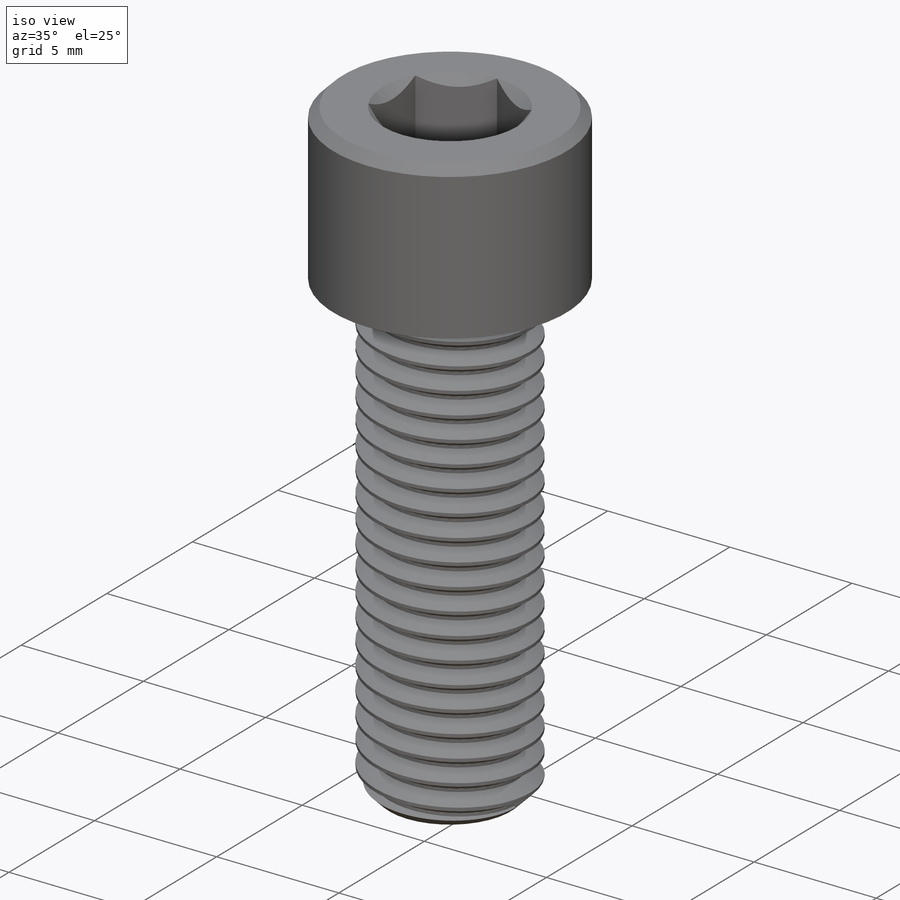
[diagram: iso view]
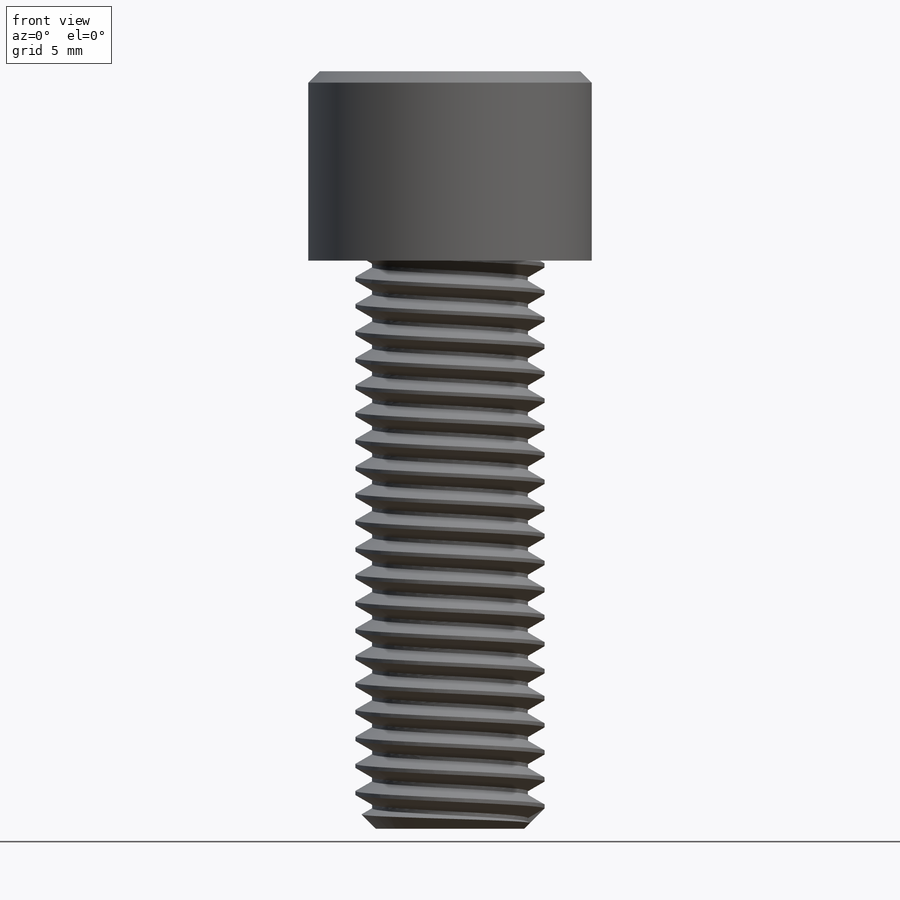
[diagram: front view]
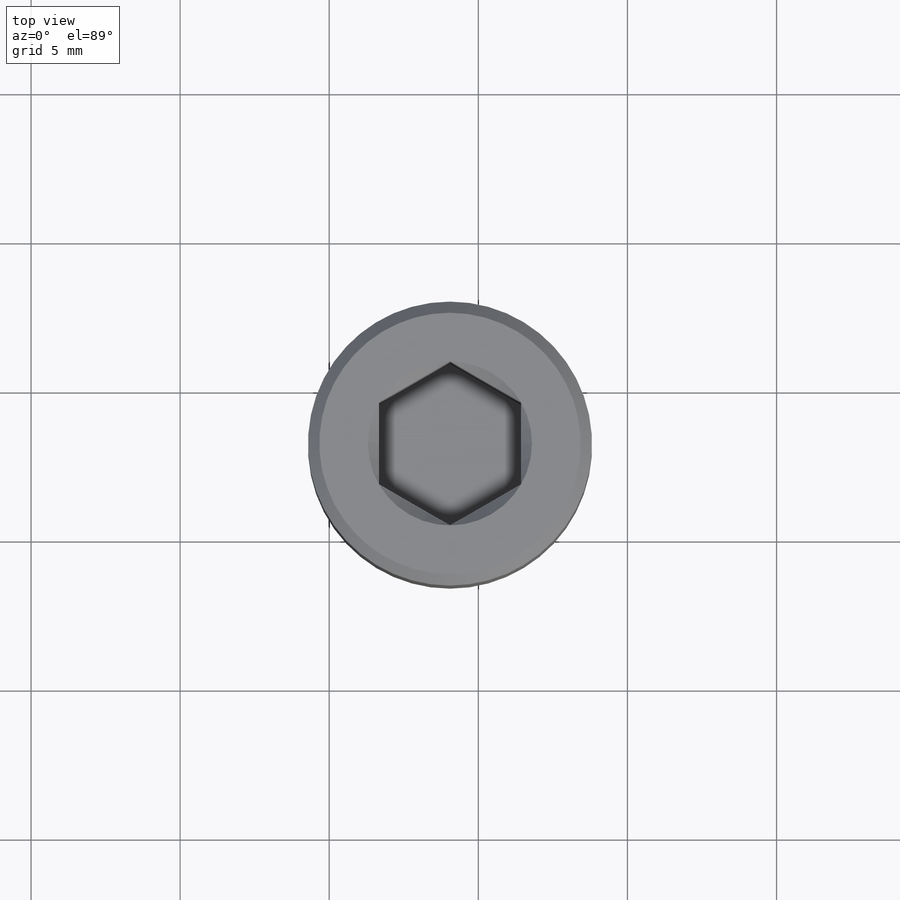
[diagram: top view]
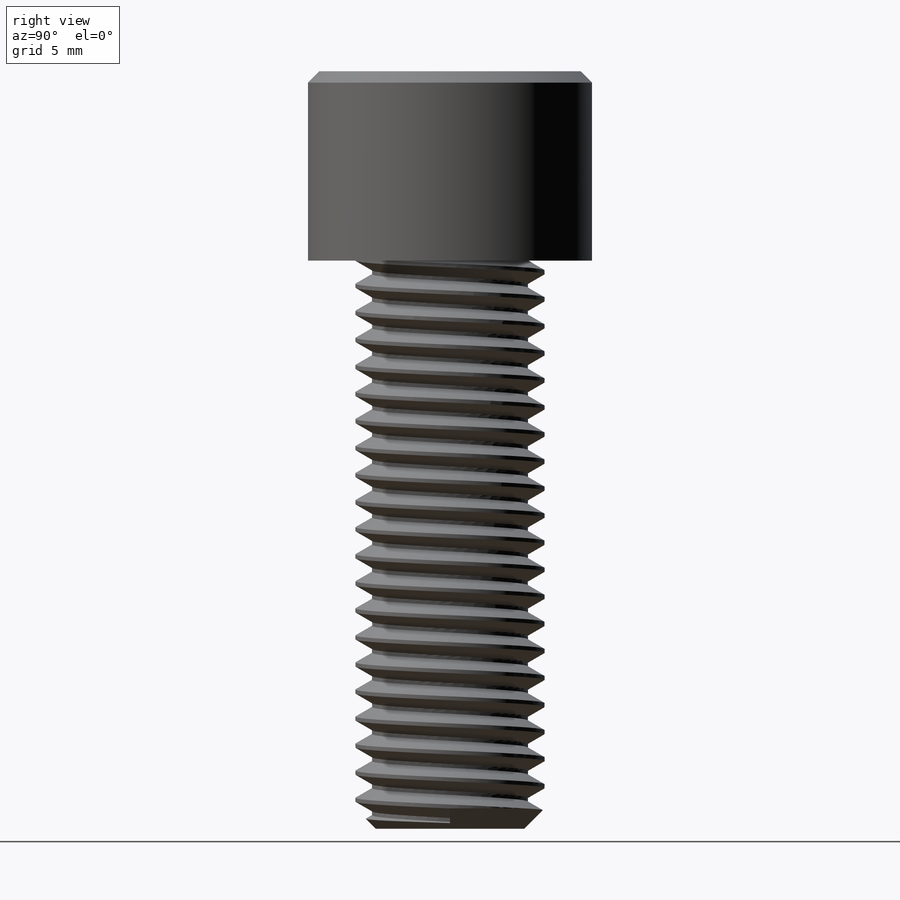
[diagram: right view]
SOLIDWORKS PART (.sldprt)
format: sldprt  version: not decoded by parser v0  size: 3,137,536 bytes
history: native  units: mm
features: sketch x16, cut_extrude x6, revolve x2, helix x2, sweep x2, pattern_circular x2, extrude x2, chamfer x2, mirror x2, boolean_combine x2, material x1, plane x1, cut_revolve x1, fillet x1 (+14 scaffold rows collapsed)
feature tree (56):
  scaffold x14  (default folders/planes/origin — collapsed)
  material  "Material <not specified>"
  sketch  "Sketch11"  dims[D1=69.85mm D2=~10.31875mm Tapped Dia=6.35mm D3=12.7mm]
  revolve  "Revolve2"  Angle=360deg
  sketch  "Sketch15"  dims[D1=0.0mm]
  helix  "Helix/Spiral1"  Pitch=16.66875mm
  sketch  "Sketch16"  dims[c1.D1=1.27mm c1.D2=~0.15875mm c1.D3=~1.374815mm c2.D3=60.0deg]
  sweep  "Cut-Sweep1"
  pattern_circular  "CirPattern1"  Count=2 Angle=120deg
  pattern_circular  "CirPattern2"  Count=2 Angle=120deg
  sketch  "Sketch1"  dims[Bore Dia=25.4mm OD=50.8mm Separation=1.016mm]
  extrude  "Extrude1"  Depth=25.4mm Width=25.4mm
  sketch  "Sketch14"  dims[D1=~10.31875mm]
  plane  "Plane1"
  sketch  "Sketch4"  dims[c1.Set Screw Dia=9.525mm c1.D1=9.525mm c1.D2=15.875mm c1.Height Head=6.35mm c2.D2=60.325mm c2.D3=1.27mm c3.D2=12.7mm c3.Head Dia=9.525mm c3.D3=4.7625mm c3.Screw Dia=6.35mm c3.D5=2.54mm]
  cut_revolve  "Cut-Revolve1"  Angle=360deg
  sketch  "Sketch6"  dims[c1.Head Ht=~17.30375mm c1.D2=2.54mm c1.Screw Lg=~27.78125mm c2.Head Ht=7.9375mm c2.Thread Length=19.05mm]
  revolve  "Revolve1"  Angle=360deg
  sketch  "Sketch7"  dims[Hex=4.7625mm]
  cut_extrude  "Cut-Extrude2"  Depth=4.7625mm
  chamfer  "Chamfer3"  Distance=0.381mm Angle=45deg
  sketch  "Sketch17"
  cut_extrude  "Cut-Extrude5"  [1 undecoded]
  sketch  "Sketch18"  dims[D1=0.0mm]
  helix  "Helix/Spiral2"  Pitch=19.05mm Pitch 2=0.907143mm
  chamfer  "Chamfer4"  Distance=0.680357mm Angle=45deg
  sketch  "Sketch19"  dims[D1=~0.907143mm D2=~0.113393mm]
  sweep  "Cut-Sweep2"
  sketch  "Sketch8"  dims[Flange OD=81.28mm]
  extrude  "Extrude2"  Depth=10.31875mm Flange Th=10.31875mm
  sketch  "Sketch9"  dims[Key Width=6.35mm Key Depth=~4.92125mm Key Height=28.2956mm]
  cut_extrude  "Cut-Extrude3"  [1 undecoded]
  mirror  "Mirror1"
  mirror  "Mirror2"
  sketch  "Sketch10"  dims[c1.Hole Dia=6.35mm c1.Bolt Circle=69.85mm c1.D1=~25.341272mm c2.D1=120.0deg]
  cut_extrude  "Cut-Extrude4"  [1 undecoded]
  boolean_combine  "Combine1"
  boolean_combine  "Combine2"
  fillet  "Fillet1"  Radius=0.635mm
  sketch  "Sketch20"
  cut_extrude  "Cut-Extrude6"  [1 undecoded]
  sketch  "Sketch21"
  cut_extrude  "Cut-Extrude7"  [1 undecoded]
decode coverage: 26 of 40 modeling features carry decoded parameters
note: ~ marks probable driven/reference dimensions
note: 5 parameter values undecoded
summary: no parameter record found for 5 features
note: suppression state not decoded; provenance and decode notes live in map.json
